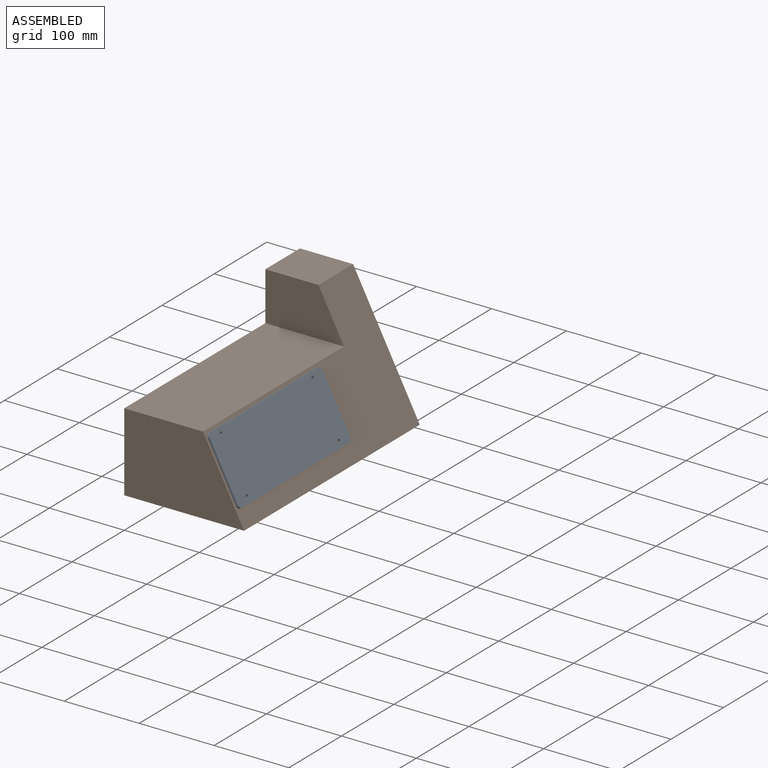
[diagram: assembled view]
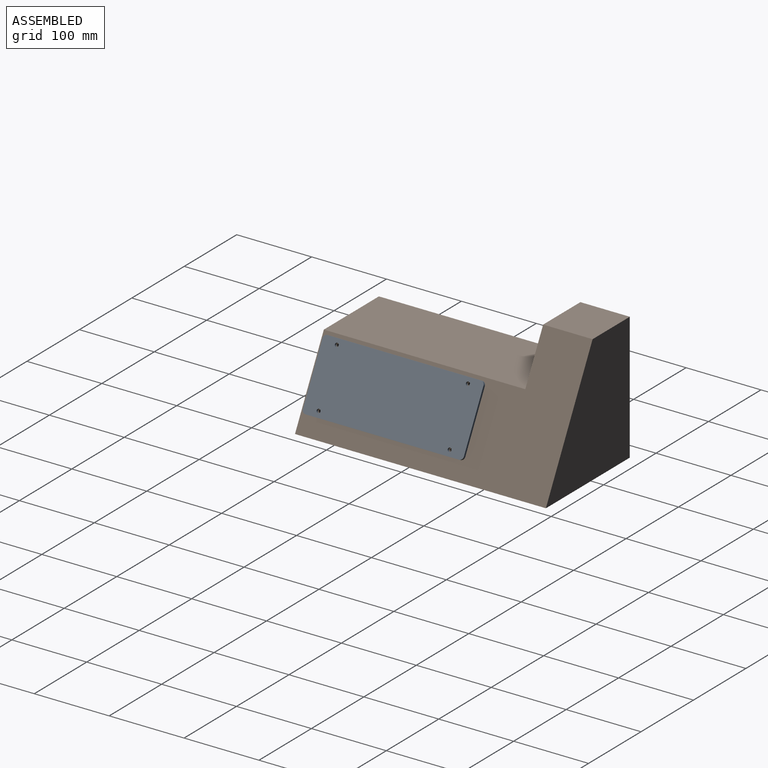
[diagram: assembled view, second angle]
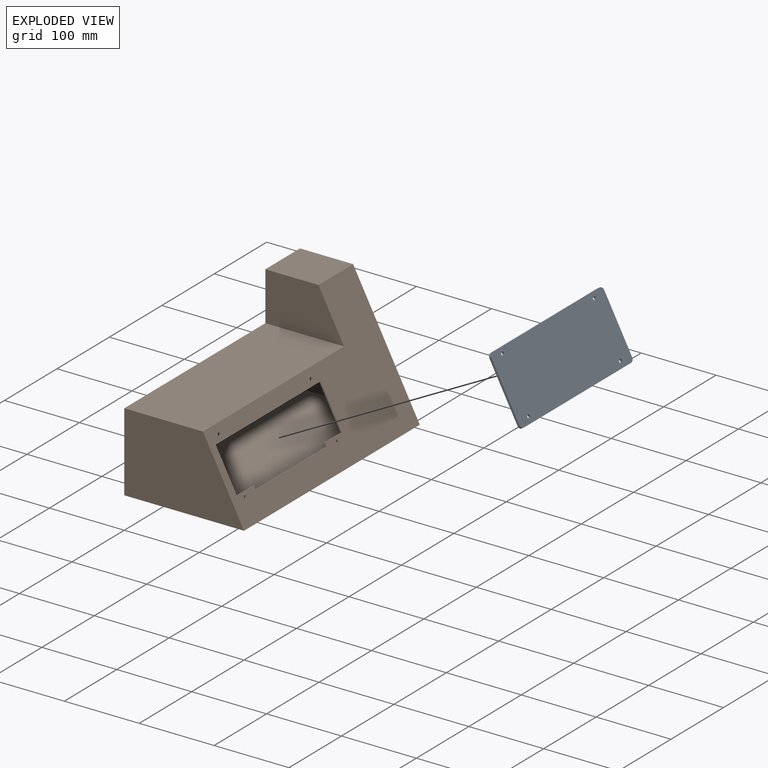
[diagram: exploded view]
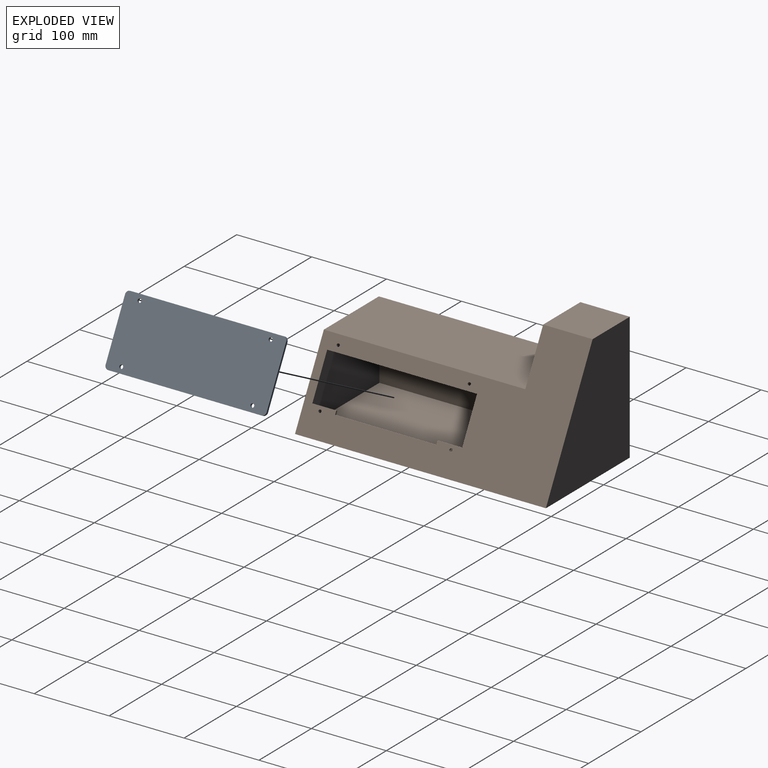
[diagram: exploded view, second angle]
ASSEMBLY  parts=2 mates=3
PART A: 14 faces, bbox 215x90x3 mm
  f0: plane 80x3mm, normal (1,0,0), area 240mm2, adj f4,f5,f6,f9
  f1: plane 205x3mm, normal (0,1,0), area 615mm2, adj f4,f5,f6,f7
  f2: plane 80x3mm, normal (-1,0,0), area 240mm2, adj f4,f5,f7,f8
  f3: plane 205x3mm, normal (0,-1,0), area 615mm2, adj f4,f5,f8,f9
  f4: plane 215x90mm, normal (0,0,1), area 19250mm2, adj f0,f1,f2,f3,f6,f7,f8,f9
  f5: plane 215x90mm, normal (0,0,-1), area 19250mm2, adj f0,f1,f2,f3,f6,f7,f8,f9
  f6: cylinder r=5mm len=5mm, axis (0,0,1), area 23.6mm2, adj f0,f1,f4,f5
  f7: cylinder r=5mm len=5mm, axis (0,0,-1), area 23.6mm2, adj f1,f2,f4,f5
  f8: cylinder r=5mm len=5mm, axis (0,0,1), area 23.6mm2, adj f2,f3,f4,f5
  f9: cylinder r=5mm len=5mm, axis (0,0,-1), area 23.6mm2, adj f0,f3,f4,f5
  f10: cylinder r=2.5mm len=5mm, axis (0,0,1), area 47.1mm2, adj f4,f5
  f11: cylinder r=2.5mm len=5mm, axis (0,0,1), area 47.1mm2, adj f4,f5
  f12: cylinder r=2.5mm len=5mm, axis (0,0,1), area 47.1mm2, adj f4,f5
  f13: cylinder r=2.5mm len=5mm, axis (0,0,1), area 47.1mm2, adj f4,f5
PART B: 28 faces, bbox 160x335x170 mm
  f0: plane 335x170mm, normal (0.89,0,0.46), area 31626.1mm2, adj f1,f3,f4,f5,f6,f7,f8,f9
  f1: plane 269x105mm, normal (0,0,1), area 28245mm2, adj f0,f2,f5,f7
  f2: plane 335x170mm, normal (-1,0,0), area 39465mm2, adj f1,f3,f4,f5,f6,f7
  f3: plane 335x160mm, normal (0,0,-1), area 53600mm2, adj f0,f2,f4,f5
  f4: plane 170x160mm, normal (0,1,0), area 19631mm2, adj f0,f2,f3,f6
  f5: plane 160x105mm, normal (0,-1,0), area 13912.5mm2, adj f0,f1,f2,f3
  f6: plane 70.95x66mm, normal (0,0,1), area 4682.9mm2, adj f0,f2,f4,f7
  f7: plane 105x65mm, normal (0,-1,0), area 5718.5mm2, adj f0,f1,f2,f6
  f8: plane 200x1.77mm, normal (0.46,0,-0.89), area 400mm2, adj f0,f9,f15,f16
  f9: plane 54.96x30.08mm, normal (0,1,0), area 122mm2, adj f0,f8,f10,f16
  f10: plane 32x1.77mm, normal (-0.46,0,0.89), area 64mm2, adj f0,f9,f11,f16
  f11: plane 5.36x4.09mm, normal (0,1,0), area 10mm2, adj f0,f10,f12,f16
  f12: plane 135x1.77mm, normal (-0.46,0,0.89), area 270mm2, adj f0,f11,f13,f16
  f13: plane 5.36x4.09mm, normal (0,-1,0), area 10mm2, adj f0,f12,f14,f16
  f14: plane 33x1.77mm, normal (-0.46,0,0.89), area 66mm2, adj f0,f13,f15,f16
  f15: plane 54.96x30.08mm, normal (0,-1,0), area 122mm2, adj f0,f8,f14,f16
  f16: plane 331x166mm, normal (-0.89,0,-0.46), area 29363.8mm2, adj f8,f9,f10,f11,f12,f13,f14,f15
  f17: plane 269x101.79mm, normal (0,0,-1), area 27381.5mm2, adj f16,f18,f21,f23
  f18: plane 331x166mm, normal (1,0,0), area 37461mm2, adj f17,f19,f20,f21,f22,f23
  f19: plane 331x154.69mm, normal (0,0,1), area 51203.9mm2, adj f16,f18,f20,f21
  f20: plane 166x154.69mm, normal (0,-1,0), area 18462.3mm2, adj f16,f18,f19,f22
  f21: plane 154.69x101mm, normal (0,1,0), area 12952.5mm2, adj f16,f17,f18,f19
  f22: plane 67.74x62mm, normal (0,0,-1), area 4200mm2, adj f16,f18,f20,f23
  f23: plane 101.79x65mm, normal (0,1,0), area 5509.8mm2, adj f16,f17,f18,f22
  f24: cylinder r=2mm len=4.47mm, axis (0.89,0,0.46), area 25.1mm2, adj f0,f16
  f25: cylinder r=2mm len=4.47mm, axis (0.89,0,0.46), area 25.1mm2, adj f0,f16
  f26: cylinder r=2mm len=4.47mm, axis (0.89,0,0.46), area 25.1mm2, adj f0,f16
  f27: cylinder r=2mm len=4.47mm, axis (0.89,0,0.46), area 25.1mm2, adj f0,f16
PLACE A rot(axis=(-0.65,-0.65,0.39),137.1deg) t=(130.63,110.5,62.54)mm
PLACE B at identity fixed
MATE planar A.f4 <-> B.f27  axis (-0.89,0,-0.46) through (127.97,110.5,61.15)mm
MATE cylindrical A.f10 <-> B.f27  axis (-0.89,0,-0.46) through (145.37,23,27.93)mm
MATE cylindrical A.f12 <-> B.f25  axis (-0.89,0,-0.46) through (111.9,198,95.07)mm
